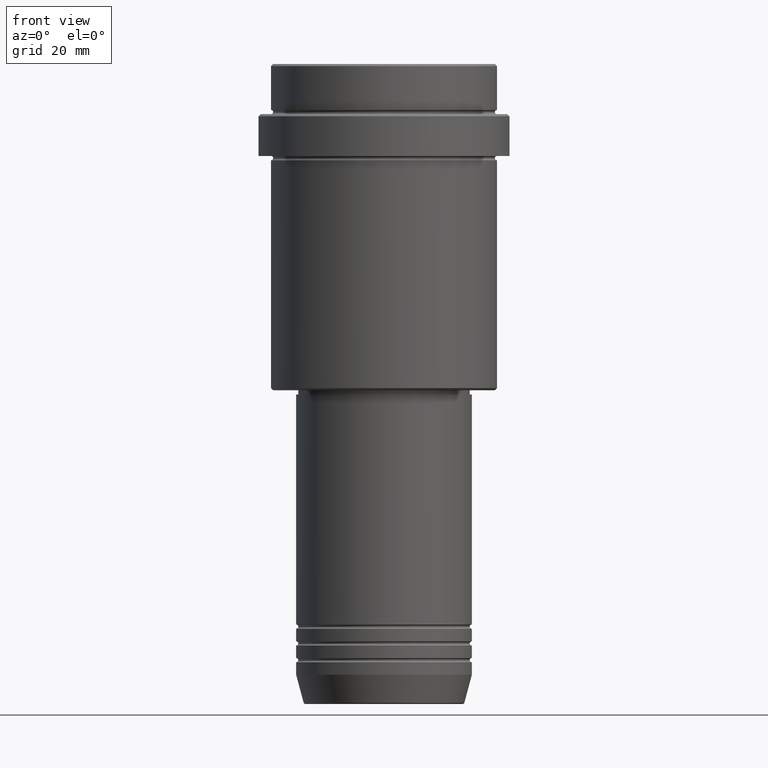
[diagram: clean part render]
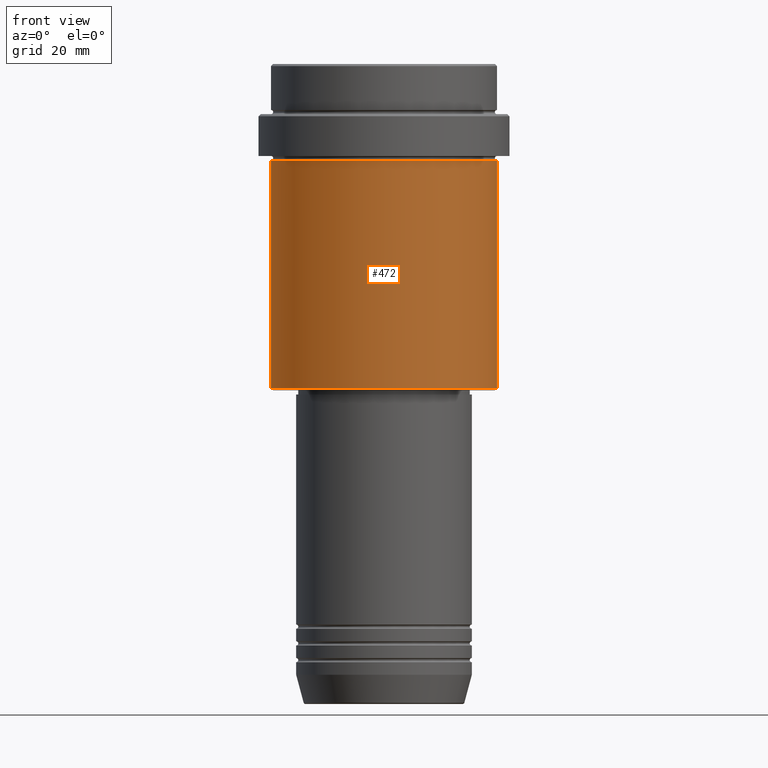
[diagram: same view with one face highlighted and labeled with its STEP entity id]
A machine part, front view. The second image highlights one B-rep face of the part: STEP entity #472.
In plain terms, the highlighted cylindrical surface (partial cylindrical patch) has radius 27 mm, axis along (-0, -0, 1).
Its self-contained STEP definition (entity closure, byte-faithful):
#28 = DIRECTION ( 'NONE',  ( -0.000000000000000000, -0.000000000000000000, 1.000000000000000000 ) ) ;
#62 = ORIENTED_EDGE ( 'NONE', *, *, #1412, .F. ) ;
#77 = CIRCLE ( 'NONE', #464, 26.99999999999999645 ) ;
#126 = ORIENTED_EDGE ( 'NONE', *, *, #570, .F. ) ;
#179 = CARTESIAN_POINT ( 'NONE',  ( 0.000000000000000000, 0.000000000000000000, 0.000000000000000000 ) ) ;
#287 = CYLINDRICAL_SURFACE ( 'NONE', #639, 26.99999999999999645 ) ;
#336 = DIRECTION ( 'NONE',  ( 1.000000000000000000, 0.000000000000000000, 0.000000000000000000 ) ) ;
#430 = VERTEX_POINT ( 'NONE', #591 ) ;
#458 = LINE ( 'NONE', #1317, #828 ) ;
#464 = AXIS2_PLACEMENT_3D ( 'NONE', #525, #965, #336 ) ;
#472 = ADVANCED_FACE ( 'NONE', ( #499 ), #287, .T. ) ;
#499 = FACE_OUTER_BOUND ( 'NONE', #1094, .T. ) ;
#525 = CARTESIAN_POINT ( 'NONE',  ( 0.000000000000000000, 0.000000000000000000, -23.00000000000000000 ) ) ;
#529 = CIRCLE ( 'NONE', #922, 26.99999999999999645 ) ;
#542 = LINE ( 'NONE', #1306, #1205 ) ;
#570 = EDGE_CURVE ( 'NONE', #430, #862, #77, .T. ) ;
#591 = CARTESIAN_POINT ( 'NONE',  ( -26.99999999999999645, 3.306546357697853339E-15, -23.00000000000000000 ) ) ;
#639 = AXIS2_PLACEMENT_3D ( 'NONE', #179, #714, #737 ) ;
#714 = DIRECTION ( 'NONE',  ( -0.000000000000000000, -0.000000000000000000, 1.000000000000000000 ) ) ;
#726 = EDGE_CURVE ( 'NONE', #736, #1227, #529, .T. ) ;
#736 = VERTEX_POINT ( 'NONE', #1335 ) ;
#737 = DIRECTION ( 'NONE',  ( 1.000000000000000000, 0.000000000000000000, 0.000000000000000000 ) ) ;
#748 = DIRECTION ( 'NONE',  ( -0.000000000000000000, -0.000000000000000000, 1.000000000000000000 ) ) ;
#828 = VECTOR ( 'NONE', #893, 1000.000000000000000 ) ;
#849 = ORIENTED_EDGE ( 'NONE', *, *, #726, .T. ) ;
#862 = VERTEX_POINT ( 'NONE', #1369 ) ;
#893 = DIRECTION ( 'NONE',  ( -0.000000000000000000, -0.000000000000000000, 1.000000000000000000 ) ) ;
#901 = EDGE_CURVE ( 'NONE', #1227, #862, #542, .T. ) ;
#922 = AXIS2_PLACEMENT_3D ( 'NONE', #1004, #28, #1119 ) ;
#935 = ORIENTED_EDGE ( 'NONE', *, *, #901, .T. ) ;
#965 = DIRECTION ( 'NONE',  ( -0.000000000000000000, -0.000000000000000000, 1.000000000000000000 ) ) ;
#1004 = CARTESIAN_POINT ( 'NONE',  ( 0.000000000000000000, 0.000000000000000000, -77.50000000000002842 ) ) ;
#1094 = EDGE_LOOP ( 'NONE', ( #62, #849, #935, #126 ) ) ;
#1119 = DIRECTION ( 'NONE',  ( -1.000000000000000000, 0.000000000000000000, 0.000000000000000000 ) ) ;
#1205 = VECTOR ( 'NONE', #748, 1000.000000000000000 ) ;
#1227 = VERTEX_POINT ( 'NONE', #1379 ) ;
#1306 = CARTESIAN_POINT ( 'NONE',  ( 26.99999999999999645, 0.000000000000000000, 0.000000000000000000 ) ) ;
#1317 = CARTESIAN_POINT ( 'NONE',  ( -26.99999999999999645, 3.306546357697853339E-15, 0.000000000000000000 ) ) ;
#1335 = CARTESIAN_POINT ( 'NONE',  ( -26.99999999999999645, 3.306546357697853339E-15, -77.50000000000002842 ) ) ;
#1369 = CARTESIAN_POINT ( 'NONE',  ( 26.99999999999999645, 0.000000000000000000, -23.00000000000000000 ) ) ;
#1379 = CARTESIAN_POINT ( 'NONE',  ( 26.99999999999999645, 0.000000000000000000, -77.50000000000002842 ) ) ;
#1412 = EDGE_CURVE ( 'NONE', #736, #430, #458, .T. ) ;